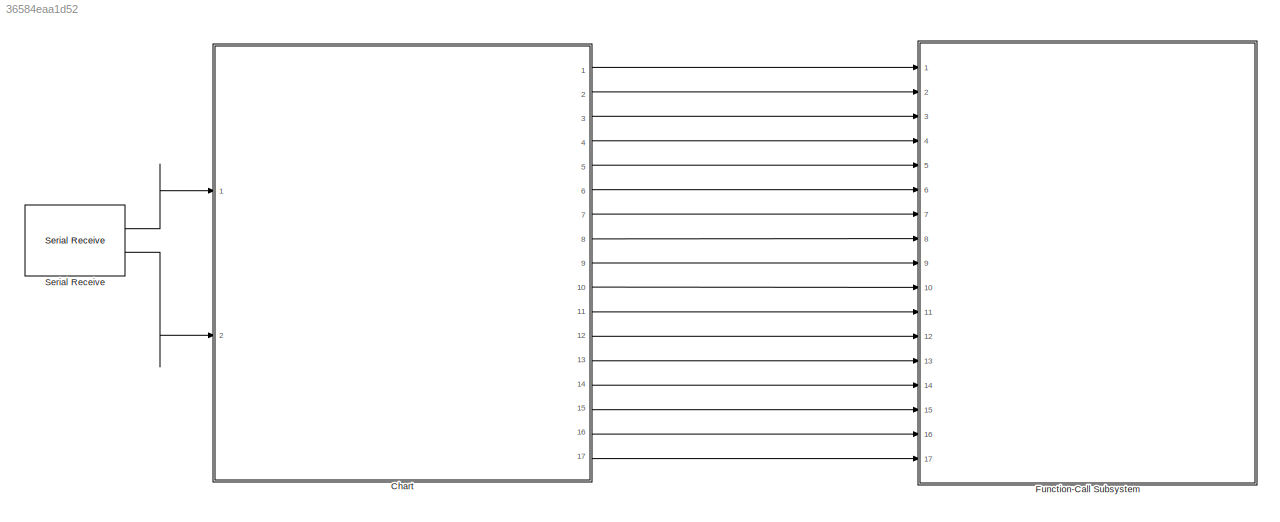
MODEL slx_36584eaa1d52
KIND model
CONFIG AbsTol = auto
CONFIG EnableMultiTasking = on
CONFIG FixedStep = 1E-3
CONFIG MaxStep = auto
CONFIG MinStep = auto
CONFIG RelTol = 1e-3
CONFIG SampleTimeConstraint = Unconstrained
CONFIG Solver = FixedStepAuto
CONFIG SolverName = FixedStepAuto
CONFIG StartTime = 0.0
CONFIG StopTime = 10.0
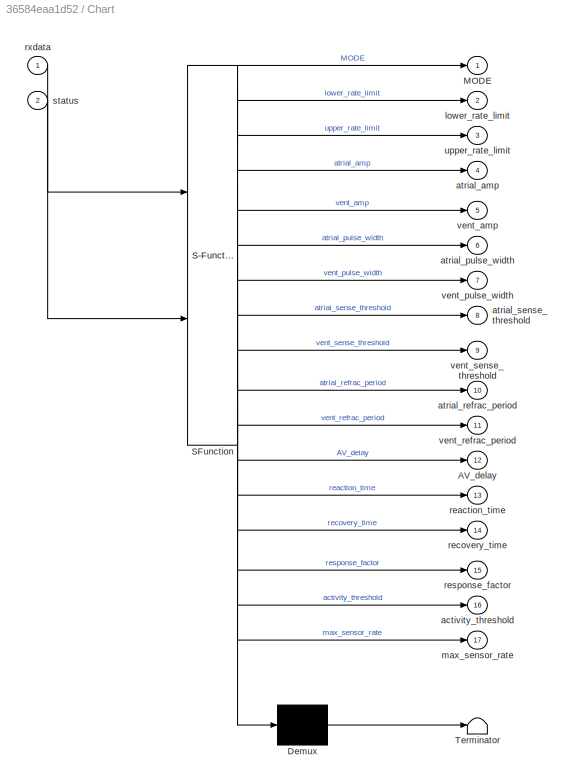
BLOCK [SubSystem] Chart
  BlockKeywords = __PRM__SERIALIZED__DATA__:Stateflow Chart,Stateflow Diagram
  ErrorFcn = Stateflow.Translate.translate
  PermitHierarchicalResolution = ExplicitOnly
  Ports = [2, 17]
  RequestExecContextInheritance = off
  SFBlockType = Chart
  TreatAsAtomicUnit = on
BLOCK [Demux] Chart/ Demux 
  Outputs = 1
  Ports = [1, 1]
BLOCK [S-Function] Chart/ SFunction 
  EnableBusSupport = off
  FunctionName = sf_sfun
  PortCounts = [2 18]
  Ports = [2, 18]
  SFcnIsStateOwnerBlock = off
  SFunctionDeploymentMode = off
  Tag = Stateflow S-Function serialComm_simulink 3
BLOCK [Terminator] Chart/ Terminator 
BLOCK [Outport] Chart/AV_delay
  IconDisplay = Port number
  Port = 12
BLOCK [Outport] Chart/MODE
  IconDisplay = Port number
BLOCK [Outport] Chart/activity_threshold
  IconDisplay = Port number
  Port = 16
BLOCK [Outport] Chart/atrial_amp
  IconDisplay = Port number
  Port = 4
BLOCK [Outport] Chart/atrial_pulse_width
  IconDisplay = Port number
  Port = 6
BLOCK [Outport] Chart/atrial_refrac_period
  IconDisplay = Port number
  Port = 10
BLOCK [Outport] Chart/atrial_sense_threshold
  IconDisplay = Port number
  Port = 8
BLOCK [Outport] Chart/lower_rate_limit
  IconDisplay = Port number
  Port = 2
BLOCK [Outport] Chart/max_sensor_rate
  IconDisplay = Port number
  Port = 17
BLOCK [Outport] Chart/reaction_time
  IconDisplay = Port number
  Port = 13
BLOCK [Outport] Chart/recovery_time
  IconDisplay = Port number
  Port = 14
BLOCK [Outport] Chart/response_factor
  IconDisplay = Port number
  Port = 15
BLOCK [Inport] Chart/rxdata
  IconDisplay = Port number
BLOCK [Inport] Chart/status
  IconDisplay = Port number
  Port = 2
BLOCK [Outport] Chart/upper_rate_limit
  IconDisplay = Port number
  Port = 3
BLOCK [Outport] Chart/vent_amp
  IconDisplay = Port number
  Port = 5
BLOCK [Outport] Chart/vent_pulse_width
  IconDisplay = Port number
  Port = 7
BLOCK [Outport] Chart/vent_refrac_period
  IconDisplay = Port number
  Port = 11
BLOCK [Outport] Chart/vent_sense_threshold
  IconDisplay = Port number
  Port = 9
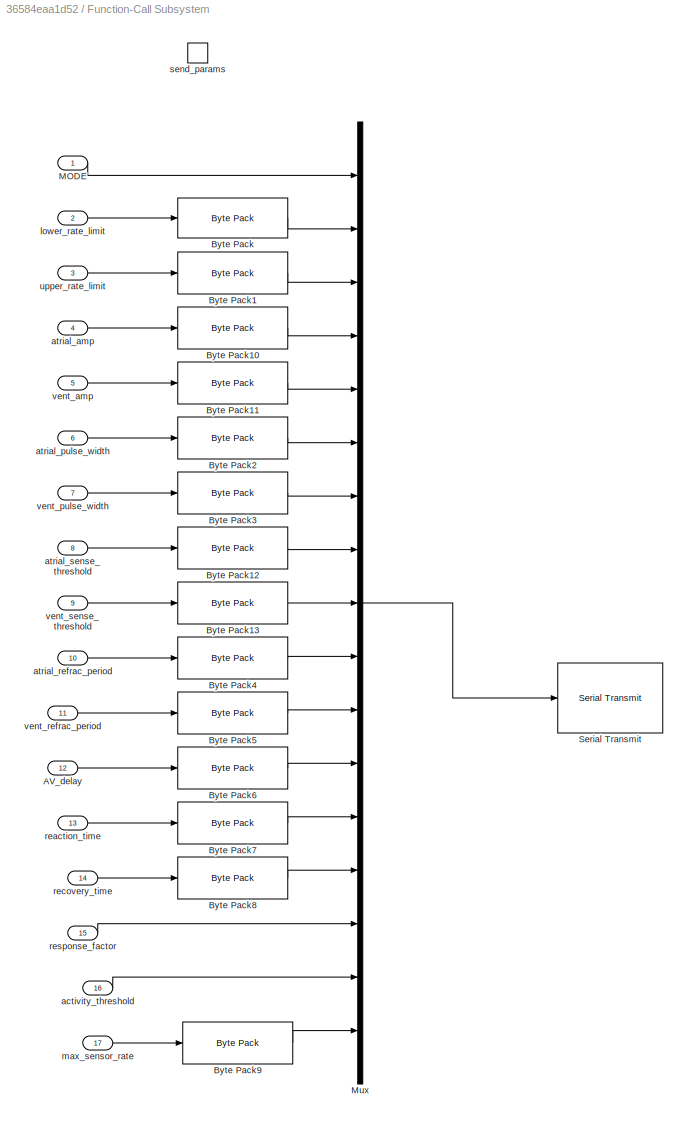
BLOCK [SubSystem] Function-Call Subsystem
  Ports = [17, 0, 0, 1]
  RequestExecContextInheritance = off
  TreatAsAtomicUnit = on
BLOCK [Inport] Function-Call Subsystem/AV_delay
  IconDisplay = Port number
  Port = 12
BLOCK [Reference] Function-Call Subsystem/Byte Pack  REF=etargetslib/Byte Pack
  Ports = [1, 1]
  SourceBlock = etargetslib/Byte Pack
  SourceProductBaseCode = ME
  SourceProductName = MATLAB Coder
  SourceType = Byte pack
BLOCK [Reference] Function-Call Subsystem/Byte Pack1  REF=etargetslib/Byte Pack
  Ports = [1, 1]
  SourceBlock = etargetslib/Byte Pack
  SourceProductBaseCode = ME
  SourceProductName = MATLAB Coder
  SourceType = Byte pack
BLOCK [Reference] Function-Call Subsystem/Byte Pack10  REF=etargetslib/Byte Pack
  Ports = [1, 1]
  SourceBlock = etargetslib/Byte Pack
  SourceProductBaseCode = ME
  SourceProductName = MATLAB Coder
  SourceType = Byte pack
BLOCK [Reference] Function-Call Subsystem/Byte Pack11  REF=etargetslib/Byte Pack
  Ports = [1, 1]
  SourceBlock = etargetslib/Byte Pack
  SourceProductBaseCode = ME
  SourceProductName = MATLAB Coder
  SourceType = Byte pack
BLOCK [Reference] Function-Call Subsystem/Byte Pack12  REF=etargetslib/Byte Pack
  Ports = [1, 1]
  SourceBlock = etargetslib/Byte Pack
  SourceProductBaseCode = ME
  SourceProductName = MATLAB Coder
  SourceType = Byte pack
BLOCK [Reference] Function-Call Subsystem/Byte Pack13  REF=etargetslib/Byte Pack
  Ports = [1, 1]
  SourceBlock = etargetslib/Byte Pack
  SourceProductBaseCode = ME
  SourceProductName = MATLAB Coder
  SourceType = Byte pack
BLOCK [Reference] Function-Call Subsystem/Byte Pack2  REF=etargetslib/Byte Pack
  Ports = [1, 1]
  SourceBlock = etargetslib/Byte Pack
  SourceProductBaseCode = ME
  SourceProductName = MATLAB Coder
  SourceType = Byte pack
BLOCK [Reference] Function-Call Subsystem/Byte Pack3  REF=etargetslib/Byte Pack
  Ports = [1, 1]
  SourceBlock = etargetslib/Byte Pack
  SourceProductBaseCode = ME
  SourceProductName = MATLAB Coder
  SourceType = Byte pack
BLOCK [Reference] Function-Call Subsystem/Byte Pack4  REF=etargetslib/Byte Pack
  Ports = [1, 1]
  SourceBlock = etargetslib/Byte Pack
  SourceProductBaseCode = ME
  SourceProductName = MATLAB Coder
  SourceType = Byte pack
BLOCK [Reference] Function-Call Subsystem/Byte Pack5  REF=etargetslib/Byte Pack
  Ports = [1, 1]
  SourceBlock = etargetslib/Byte Pack
  SourceProductBaseCode = ME
  SourceProductName = MATLAB Coder
  SourceType = Byte pack
BLOCK [Reference] Function-Call Subsystem/Byte Pack6  REF=etargetslib/Byte Pack
  Ports = [1, 1]
  SourceBlock = etargetslib/Byte Pack
  SourceProductBaseCode = ME
  SourceProductName = MATLAB Coder
  SourceType = Byte pack
BLOCK [Reference] Function-Call Subsystem/Byte Pack7  REF=etargetslib/Byte Pack
  Ports = [1, 1]
  SourceBlock = etargetslib/Byte Pack
  SourceProductBaseCode = ME
  SourceProductName = MATLAB Coder
  SourceType = Byte pack
BLOCK [Reference] Function-Call Subsystem/Byte Pack8  REF=etargetslib/Byte Pack
  Ports = [1, 1]
  SourceBlock = etargetslib/Byte Pack
  SourceProductBaseCode = ME
  SourceProductName = MATLAB Coder
  SourceType = Byte pack
BLOCK [Reference] Function-Call Subsystem/Byte Pack9  REF=etargetslib/Byte Pack
  Ports = [1, 1]
  SourceBlock = etargetslib/Byte Pack
  SourceProductBaseCode = ME
  SourceProductName = MATLAB Coder
  SourceType = Byte pack
BLOCK [Inport] Function-Call Subsystem/MODE
  IconDisplay = Port number
BLOCK [Mux] Function-Call Subsystem/Mux
  DisplayOption = bar
  Inputs = 17
  Ports = [17, 1]
BLOCK [Reference] Function-Call Subsystem/Serial Transmit  REF=frdmk64flib/Serial Transmit
  Ports = [1]
  SourceBlock = frdmk64flib/Serial Transmit
  SourceProductBaseCode = EC_FRDM_K64F
  SourceProductName = Simulink Coder Support Package for NXP FRDM-K64F Board
  SourceType = freedomk64f.SCIWrite
BLOCK [Inport] Function-Call Subsystem/activity_threshold
  IconDisplay = Port number
  Port = 16
BLOCK [Inport] Function-Call Subsystem/atrial_amp
  IconDisplay = Port number
  Port = 4
BLOCK [Inport] Function-Call Subsystem/atrial_pulse_width
  IconDisplay = Port number
  Port = 6
BLOCK [Inport] Function-Call Subsystem/atrial_refrac_period
  IconDisplay = Port number
  Port = 10
BLOCK [Inport] Function-Call Subsystem/atrial_sense_threshold
  IconDisplay = Port number
  Port = 8
BLOCK [Inport] Function-Call Subsystem/lower_rate_limit
  IconDisplay = Port number
  Port = 2
BLOCK [Inport] Function-Call Subsystem/max_sensor_rate
  IconDisplay = Port number
  Port = 17
BLOCK [Inport] Function-Call Subsystem/reaction_time
  IconDisplay = Port number
  Port = 13
BLOCK [Inport] Function-Call Subsystem/recovery_time
  IconDisplay = Port number
  Port = 14
BLOCK [Inport] Function-Call Subsystem/response_factor
  IconDisplay = Port number
  Port = 15
BLOCK [TriggerPort] Function-Call Subsystem/send_params
  Ports = []
  StatesWhenEnabling = held
  TriggerType = function-call
  VariantControl = Variant
BLOCK [Inport] Function-Call Subsystem/upper_rate_limit
  IconDisplay = Port number
  Port = 3
BLOCK [Inport] Function-Call Subsystem/vent_amp
  IconDisplay = Port number
  Port = 5
BLOCK [Inport] Function-Call Subsystem/vent_pulse_width
  IconDisplay = Port number
  Port = 7
BLOCK [Inport] Function-Call Subsystem/vent_refrac_period
  IconDisplay = Port number
  Port = 11
BLOCK [Inport] Function-Call Subsystem/vent_sense_threshold
  IconDisplay = Port number
  Port = 9
BLOCK [Reference] Serial Receive  REF=frdmk64flib/Serial Receive
  Ports = [0, 2]
  SourceBlock = frdmk64flib/Serial Receive
  SourceProductBaseCode = EC_FRDM_K64F
  SourceProductName = Simulink Coder Support Package for NXP FRDM-K64F Board
  SourceType = freedomk64f.SCIRead
LINE Chart:1 -> Function-Call Subsystem:1
LINE Chart:10 -> Function-Call Subsystem:10
LINE Chart:11 -> Function-Call Subsystem:11
LINE Chart:12 -> Function-Call Subsystem:12
LINE Chart:13 -> Function-Call Subsystem:13
LINE Chart:14 -> Function-Call Subsystem:14
LINE Chart:15 -> Function-Call Subsystem:15
LINE Chart:16 -> Function-Call Subsystem:16
LINE Chart:17 -> Function-Call Subsystem:17
LINE Chart:2 -> Function-Call Subsystem:2
LINE Chart:3 -> Function-Call Subsystem:3
LINE Chart:4 -> Function-Call Subsystem:4
LINE Chart:5 -> Function-Call Subsystem:5
LINE Chart:6 -> Function-Call Subsystem:6
LINE Chart:7 -> Function-Call Subsystem:7
LINE Chart:8 -> Function-Call Subsystem:8
LINE Chart:9 -> Function-Call Subsystem:9
LINE Function-Call Subsystem/AV_delay:1 -> Function-Call Subsystem/Byte Pack6:1
LINE Function-Call Subsystem/Byte Pack10:1 -> Function-Call Subsystem/Mux:4
LINE Function-Call Subsystem/Byte Pack11:1 -> Function-Call Subsystem/Mux:5
LINE Function-Call Subsystem/Byte Pack12:1 -> Function-Call Subsystem/Mux:8
LINE Function-Call Subsystem/Byte Pack13:1 -> Function-Call Subsystem/Mux:9
LINE Function-Call Subsystem/Byte Pack1:1 -> Function-Call Subsystem/Mux:3
LINE Function-Call Subsystem/Byte Pack2:1 -> Function-Call Subsystem/Mux:6
LINE Function-Call Subsystem/Byte Pack3:1 -> Function-Call Subsystem/Mux:7
LINE Function-Call Subsystem/Byte Pack4:1 -> Function-Call Subsystem/Mux:10
LINE Function-Call Subsystem/Byte Pack5:1 -> Function-Call Subsystem/Mux:11
LINE Function-Call Subsystem/Byte Pack6:1 -> Function-Call Subsystem/Mux:12
LINE Function-Call Subsystem/Byte Pack7:1 -> Function-Call Subsystem/Mux:13
LINE Function-Call Subsystem/Byte Pack8:1 -> Function-Call Subsystem/Mux:14
LINE Function-Call Subsystem/Byte Pack9:1 -> Function-Call Subsystem/Mux:17
LINE Function-Call Subsystem/Byte Pack:1 -> Function-Call Subsystem/Mux:2
LINE Function-Call Subsystem/MODE:1 -> Function-Call Subsystem/Mux:1
LINE Function-Call Subsystem/Mux:1 -> Function-Call Subsystem/Serial Transmit:1
LINE Function-Call Subsystem/activity_threshold:1 -> Function-Call Subsystem/Mux:16
LINE Function-Call Subsystem/atrial_amp:1 -> Function-Call Subsystem/Byte Pack10:1
LINE Function-Call Subsystem/atrial_pulse_width:1 -> Function-Call Subsystem/Byte Pack2:1
LINE Function-Call Subsystem/atrial_refrac_period:1 -> Function-Call Subsystem/Byte Pack4:1
LINE Function-Call Subsystem/atrial_sense_threshold:1 -> Function-Call Subsystem/Byte Pack12:1
LINE Function-Call Subsystem/lower_rate_limit:1 -> Function-Call Subsystem/Byte Pack:1
LINE Function-Call Subsystem/max_sensor_rate:1 -> Function-Call Subsystem/Byte Pack9:1
LINE Function-Call Subsystem/reaction_time:1 -> Function-Call Subsystem/Byte Pack7:1
LINE Function-Call Subsystem/recovery_time:1 -> Function-Call Subsystem/Byte Pack8:1
LINE Function-Call Subsystem/response_factor:1 -> Function-Call Subsystem/Mux:15
LINE Function-Call Subsystem/upper_rate_limit:1 -> Function-Call Subsystem/Byte Pack1:1
LINE Function-Call Subsystem/vent_amp:1 -> Function-Call Subsystem/Byte Pack11:1
LINE Function-Call Subsystem/vent_pulse_width:1 -> Function-Call Subsystem/Byte Pack3:1
LINE Function-Call Subsystem/vent_refrac_period:1 -> Function-Call Subsystem/Byte Pack5:1
LINE Function-Call Subsystem/vent_sense_threshold:1 -> Function-Call Subsystem/Byte Pack13:1
LINE Serial Receive:1 -> Chart:1
LINE Serial Receive:2 -> Chart:2
CHART Chart states=6 transitions=6
  STATE_LABEL "SET_PARAMS\n%we assume this is the order that the data is sent in\nentry:\nMODE = rxdata(1)\nlower_rate_limit = typecast(rxdata(2:3), 'uint16')\nupper_rate_limit = typecast(rxdata(4:5), 'uint16')\natrial_amp = typecast(rxdata(6:13), 'double')\nvent_amp = typecast(rxdata(14:21), 'double')\natrial_pulse_width = typecast(rxdata(22:23), 'uint16')\nvent_pulse_width = typecast(rxdata(24:25), 'uint16')\natrial_sen...<+476ch>"
  STATE_LABEL 'transmitting DCM to board is if 0xFF\nreceiving board to DCM is 0x05'
  STATE_LABEL 'INITIAL\nentry:\nMODE = 0\nlower_rate_limit = 60\nupper_rate_limit = 150\natrial_amp = 3.3\nvent_amp = 3.3\natrial_pulse_width = 10\nvent_pulse_width = 10\natrial_sense_threshold = 2.75\nvent_sense_threshold = 2.75\natrial_refrac_period = 100\nvent_refrac_period = 100\nAV_delay = 1\nreaction_time = 0 %unknown\nrecovery_time = 0 %unknown\nresponse_factor = 0 %unknown\nactivity_threshold = 0 %unknown\nmax_sensor_rate...<+13ch>'
  STATE_LABEL 'STANDBY\n%Waiting for COM'
  STATE_LABEL 'status == 0 indicates successful read'
  STATE_LABEL 'SEND_PARAMS\nentry:\nsend_params()'
